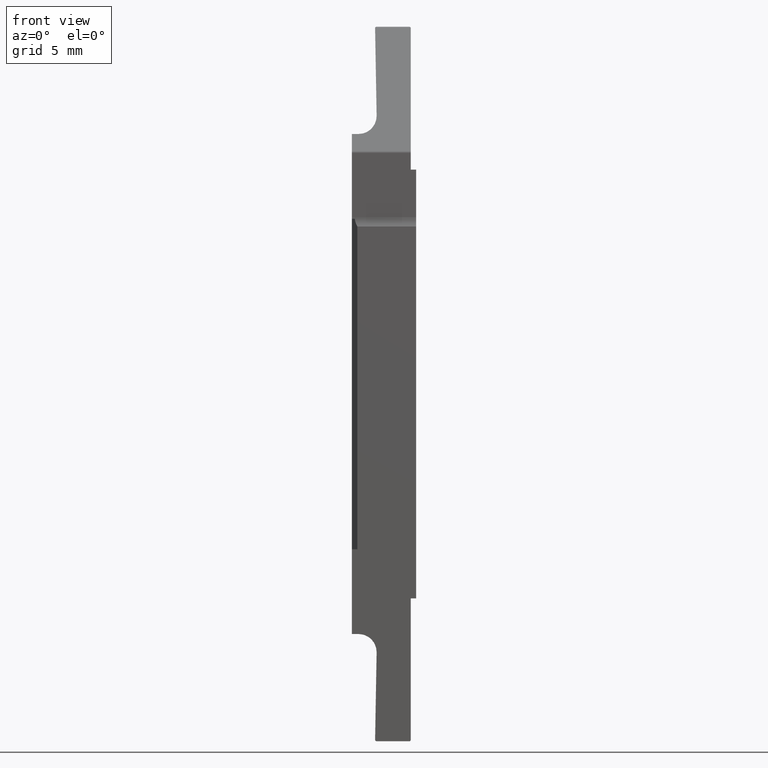
[diagram: clean part render]
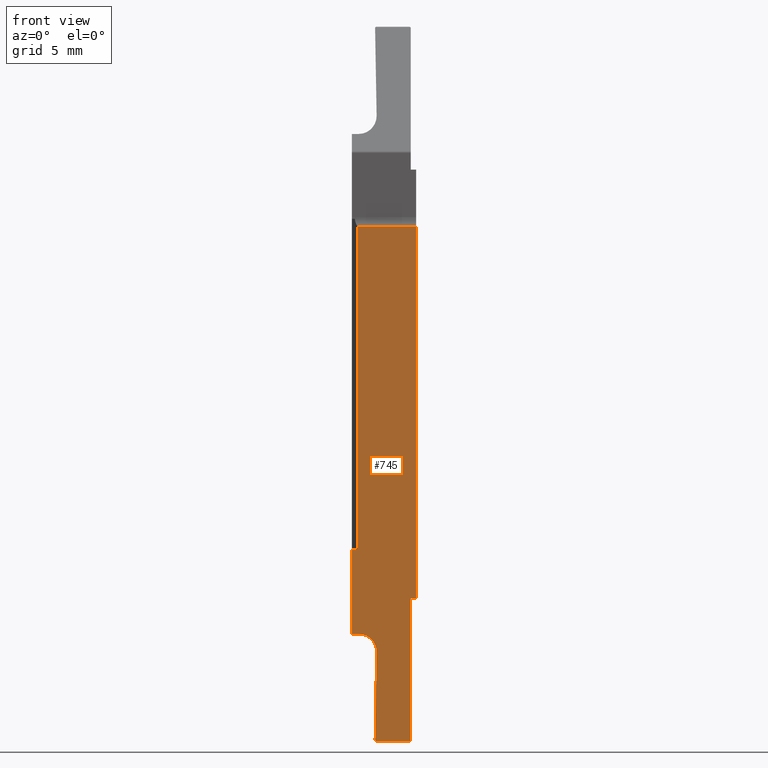
[diagram: same view with one face highlighted and labeled with its STEP entity id]
A machine part, front view. The second image highlights one B-rep face of the part: STEP entity #745.
In plain terms, the highlighted planar face has unit normal (0, 1, 0).
Its self-contained STEP definition (entity closure, byte-faithful):
#8 = CARTESIAN_POINT ( 'NONE',  ( 3.600000000000000100, -4.000000000000000000, -20.00000000000000000 ) ) ;
#11 = DIRECTION ( 'NONE',  ( -1.000000000000000000, 0.0000000000000000000, 0.0000000000000000000 ) ) ;
#30 = CARTESIAN_POINT ( 'NONE',  ( 0.0000000000000000000, -4.000000000000000000, -9.250000000000000000 ) ) ;
#31 = CARTESIAN_POINT ( 'NONE',  ( -1.590163186312068300E-016, -4.000000000000000000, 8.821269372438047500 ) ) ;
#50 = DIRECTION ( 'NONE',  ( 1.000000000000000000, 0.0000000000000000000, 0.0000000000000000000 ) ) ;
#66 = CARTESIAN_POINT ( 'NONE',  ( 1.381408591437775200, -4.000000000000000000, -20.00000000000000000 ) ) ;
#98 = CARTESIAN_POINT ( 'NONE',  ( 3.300000000000005200, -4.000000000000000000, -12.00000000000000400 ) ) ;
#99 = CARTESIAN_POINT ( 'NONE',  ( 3.220000000000005100, -4.000000000000000000, -20.00000000000000000 ) ) ;
#149 = CARTESIAN_POINT ( 'NONE',  ( 0.3119999999999950000, -4.000000000000000000, -9.250000000000000000 ) ) ;
#152 = EDGE_CURVE ( 'NONE', #717, #514, #970, .T. ) ;
#161 = VERTEX_POINT ( 'NONE', #553 ) ;
#174 = ORIENTED_EDGE ( 'NONE', *, *, #1428, .F. ) ;
#180 = LINE ( 'NONE', #1056, #1254 ) ;
#184 = EDGE_CURVE ( 'NONE', #293, #271, #1217, .T. ) ;
#186 = DIRECTION ( 'NONE',  ( 0.0000000000000000000, 0.0000000000000000000, 1.000000000000000000 ) ) ;
#189 = DIRECTION ( 'NONE',  ( 0.0000000000000000000, 1.000000000000000000, 0.0000000000000000000 ) ) ;
#190 = PLANE ( 'NONE',  #1107 ) ;
#196 = VERTEX_POINT ( 'NONE', #1098 ) ;
#205 = CARTESIAN_POINT ( 'NONE',  ( 0.3119999999999950000, -4.000000000000000000, 9.250000000000000000 ) ) ;
#221 = ORIENTED_EDGE ( 'NONE', *, *, #1327, .T. ) ;
#223 = CARTESIAN_POINT ( 'NONE',  ( 0.0000000000000000000, -4.000000000000000000, 0.0000000000000000000 ) ) ;
#267 = ORIENTED_EDGE ( 'NONE', *, *, #567, .T. ) ;
#271 = VERTEX_POINT ( 'NONE', #929 ) ;
#276 = CARTESIAN_POINT ( 'NONE',  ( 3.600000000000005400, -4.000000000000000000, -12.00000000000000400 ) ) ;
#277 = VECTOR ( 'NONE', #1062, 1000.000000000000000 ) ;
#293 = VERTEX_POINT ( 'NONE', #947 ) ;
#310 = CARTESIAN_POINT ( 'NONE',  ( 3.300000000000005200, -4.000000000000000000, -19.92000000000000200 ) ) ;
#316 = CARTESIAN_POINT ( 'NONE',  ( 0.3119999999999950000, -4.000000000000000000, 8.821269372438047500 ) ) ;
#327 = VERTEX_POINT ( 'NONE', #936 ) ;
#330 = LINE ( 'NONE', #30, #1113 ) ;
#360 = DIRECTION ( 'NONE',  ( 1.000000000000000000, -0.0000000000000000000, -0.0000000000000000000 ) ) ;
#368 = CIRCLE ( 'NONE', #999, 0.08000000000000021000 ) ;
#401 = EDGE_CURVE ( 'NONE', #161, #843, #927, .T. ) ;
#407 = DIRECTION ( 'NONE',  ( 0.0000000000000000000, 0.0000000000000000000, 1.000000000000000000 ) ) ;
#409 = DIRECTION ( 'NONE',  ( 0.0000000000000000000, 0.0000000000000000000, 1.000000000000000000 ) ) ;
#412 = DIRECTION ( 'NONE',  ( -0.0000000000000000000, -1.000000000000000000, -0.0000000000000000000 ) ) ;
#413 = CARTESIAN_POINT ( 'NONE',  ( 1.381408591437775200, -4.000000000000000000, -19.92000000000000200 ) ) ;
#434 = CARTESIAN_POINT ( 'NONE',  ( 3.600000000000001900, -4.000000000000000000, 8.821269372438045800 ) ) ;
#495 = DIRECTION ( 'NONE',  ( 0.0000000000000000000, 0.0000000000000000000, 1.000000000000000000 ) ) ;
#498 = VECTOR ( 'NONE', #958, 1000.000000000000100 ) ;
#499 = DIRECTION ( 'NONE',  ( -0.0000000000000000000, -1.000000000000000000, -0.0000000000000000000 ) ) ;
#502 = CARTESIAN_POINT ( 'NONE',  ( 3.220000000000005100, -4.000000000000000000, -19.92000000000000200 ) ) ;
#510 = VERTEX_POINT ( 'NONE', #149 ) ;
#514 = VERTEX_POINT ( 'NONE', #434 ) ;
#550 = EDGE_LOOP ( 'NONE', ( #1058, #174, #1071, #1073, #1094, #1104, #221, #1112, #1310, #267, #1118, #1120, #1125 ) ) ;
#553 = CARTESIAN_POINT ( 'NONE',  ( 1.301420775825264100, -4.000000000000000000, -19.91860380748501700 ) ) ;
#567 = EDGE_CURVE ( 'NONE', #1091, #662, #368, .T. ) ;
#581 = DIRECTION ( 'NONE',  ( 1.000000000000000000, 0.0000000000000000000, 0.0000000000000000000 ) ) ;
#607 = EDGE_CURVE ( 'NONE', #1091, #843, #1172, .T. ) ;
#644 = VERTEX_POINT ( 'NONE', #98 ) ;
#645 = VECTOR ( 'NONE', #11, 1000.000000000000000 ) ;
#662 = VERTEX_POINT ( 'NONE', #310 ) ;
#670 = VERTEX_POINT ( 'NONE', #316 ) ;
#717 = VERTEX_POINT ( 'NONE', #276 ) ;
#745 = ADVANCED_FACE ( 'NONE', ( #892 ), #190, .F. ) ;
#784 = CARTESIAN_POINT ( 'NONE',  ( 3.599999999999999600, -4.000000000000000000, 30.00000000000000000 ) ) ;
#843 = VERTEX_POINT ( 'NONE', #66 ) ;
#865 = EDGE_CURVE ( 'NONE', #327, #510, #330, .T. ) ;
#877 = DIRECTION ( 'NONE',  ( -1.228762462150238500E-016, 0.0000000000000000000, 1.000000000000000000 ) ) ;
#892 = FACE_OUTER_BOUND ( 'NONE', #550, .T. ) ;
#900 = EDGE_CURVE ( 'NONE', #644, #717, #1124, .T. ) ;
#902 = VECTOR ( 'NONE', #407, 1000.000000000000000 ) ;
#927 = CIRCLE ( 'NONE', #1039, 0.08000000000000021000 ) ;
#929 = CARTESIAN_POINT ( 'NONE',  ( 0.3871229965971845200, -4.000000000000000000, -14.00000000000000400 ) ) ;
#936 = CARTESIAN_POINT ( 'NONE',  ( 5.315678523186871700E-015, -4.000000000000000000, -9.250000000000001800 ) ) ;
#947 = CARTESIAN_POINT ( 'NONE',  ( 5.315678523186871700E-015, -4.000000000000000000, -14.00000000000000400 ) ) ;
#958 = DIRECTION ( 'NONE',  ( -0.01745240643728355000, 0.0000000000000000000, -0.9998476951563911600 ) ) ;
#962 = EDGE_CURVE ( 'NONE', #271, #196, #1423, .T. ) ;
#967 = VECTOR ( 'NONE', #1035, 1000.000000000000000 ) ;
#970 = LINE ( 'NONE', #784, #976 ) ;
#976 = VECTOR ( 'NONE', #877, 1000.000000000000000 ) ;
#999 = AXIS2_PLACEMENT_3D ( 'NONE', #502, #499, #495 ) ;
#1014 = CARTESIAN_POINT ( 'NONE',  ( 1.404730389569310800, -4.000000000000000000, -14.00000000000000200 ) ) ;
#1018 = VECTOR ( 'NONE', #360, 1000.000000000000000 ) ;
#1019 = LINE ( 'NONE', #205, #902 ) ;
#1022 = EDGE_CURVE ( 'NONE', #662, #644, #1074, .T. ) ;
#1030 = DIRECTION ( 'NONE',  ( 1.224646799147353200E-016, 0.0000000000000000000, -1.000000000000000000 ) ) ;
#1035 = DIRECTION ( 'NONE',  ( 1.000000000000000000, 0.0000000000000000000, 1.234915602921268400E-015 ) ) ;
#1039 = AXIS2_PLACEMENT_3D ( 'NONE', #413, #412, #409 ) ;
#1052 = CARTESIAN_POINT ( 'NONE',  ( 5.315678523186871700E-015, -4.000000000000000000, -14.00000000000000400 ) ) ;
#1056 = CARTESIAN_POINT ( 'NONE',  ( 5.089398365335106700E-016, -4.000000000000000000, 30.00000000000000000 ) ) ;
#1058 = ORIENTED_EDGE ( 'NONE', *, *, #1397, .F. ) ;
#1062 = DIRECTION ( 'NONE',  ( 0.0000000000000000000, 0.0000000000000000000, 1.000000000000000000 ) ) ;
#1068 = CARTESIAN_POINT ( 'NONE',  ( 3.300000000000005200, -4.000000000000000000, -20.00000000000000400 ) ) ;
#1071 = ORIENTED_EDGE ( 'NONE', *, *, #865, .F. ) ;
#1073 = ORIENTED_EDGE ( 'NONE', *, *, #1302, .T. ) ;
#1074 = LINE ( 'NONE', #1068, #277 ) ;
#1091 = VERTEX_POINT ( 'NONE', #99 ) ;
#1094 = ORIENTED_EDGE ( 'NONE', *, *, #184, .T. ) ;
#1098 = CARTESIAN_POINT ( 'NONE',  ( 1.386970691753576900, -4.000000000000000000, -15.01745240643728800 ) ) ;
#1101 = VECTOR ( 'NONE', #581, 1000.000000000000000 ) ;
#1104 = ORIENTED_EDGE ( 'NONE', *, *, #962, .T. ) ;
#1107 = AXIS2_PLACEMENT_3D ( 'NONE', #223, #189, #186 ) ;
#1112 = ORIENTED_EDGE ( 'NONE', *, *, #401, .T. ) ;
#1113 = VECTOR ( 'NONE', #50, 1000.000000000000000 ) ;
#1118 = ORIENTED_EDGE ( 'NONE', *, *, #1022, .T. ) ;
#1120 = ORIENTED_EDGE ( 'NONE', *, *, #900, .T. ) ;
#1122 = CARTESIAN_POINT ( 'NONE',  ( 3.300000000000005200, -4.000000000000000000, -12.00000000000000400 ) ) ;
#1124 = LINE ( 'NONE', #1122, #1101 ) ;
#1125 = ORIENTED_EDGE ( 'NONE', *, *, #152, .T. ) ;
#1155 = LINE ( 'NONE', #1014, #498 ) ;
#1156 = AXIS2_PLACEMENT_3D ( 'NONE', #1195, #1347, #1324 ) ;
#1172 = LINE ( 'NONE', #8, #645 ) ;
#1195 = CARTESIAN_POINT ( 'NONE',  ( 0.3871229965971857400, -4.000000000000000000, -15.00000000000000400 ) ) ;
#1217 = LINE ( 'NONE', #1052, #967 ) ;
#1254 = VECTOR ( 'NONE', #1030, 1000.000000000000000 ) ;
#1270 = LINE ( 'NONE', #31, #1018 ) ;
#1302 = EDGE_CURVE ( 'NONE', #327, #293, #180, .T. ) ;
#1310 = ORIENTED_EDGE ( 'NONE', *, *, #607, .F. ) ;
#1324 = DIRECTION ( 'NONE',  ( 0.0000000000000000000, 0.0000000000000000000, 1.000000000000000000 ) ) ;
#1327 = EDGE_CURVE ( 'NONE', #196, #161, #1155, .T. ) ;
#1347 = DIRECTION ( 'NONE',  ( 0.0000000000000000000, 1.000000000000000000, 0.0000000000000000000 ) ) ;
#1397 = EDGE_CURVE ( 'NONE', #670, #514, #1270, .T. ) ;
#1423 = CIRCLE ( 'NONE', #1156, 1.000000000000000900 ) ;
#1428 = EDGE_CURVE ( 'NONE', #510, #670, #1019, .T. ) ;